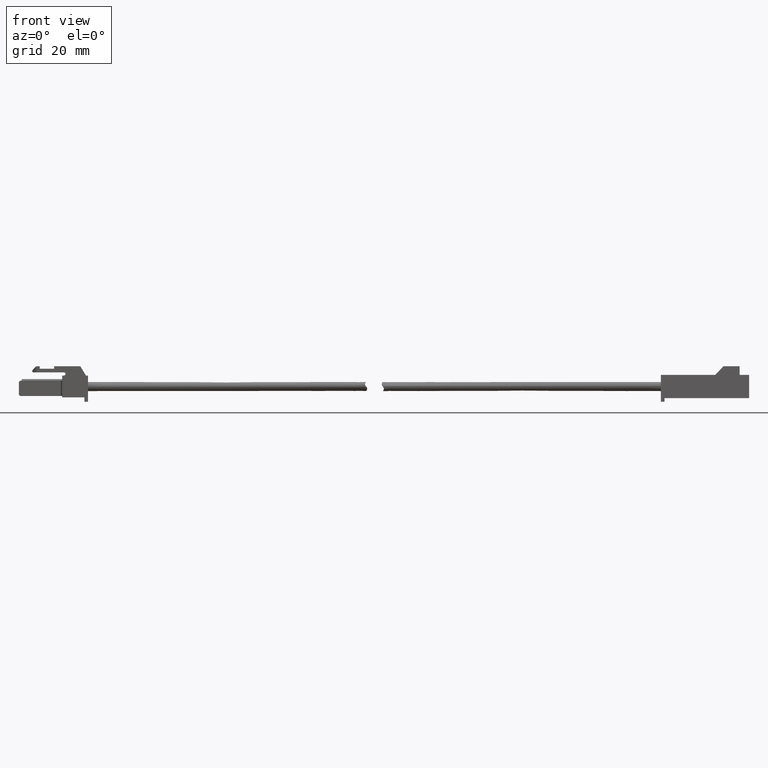
[diagram: clean part render]
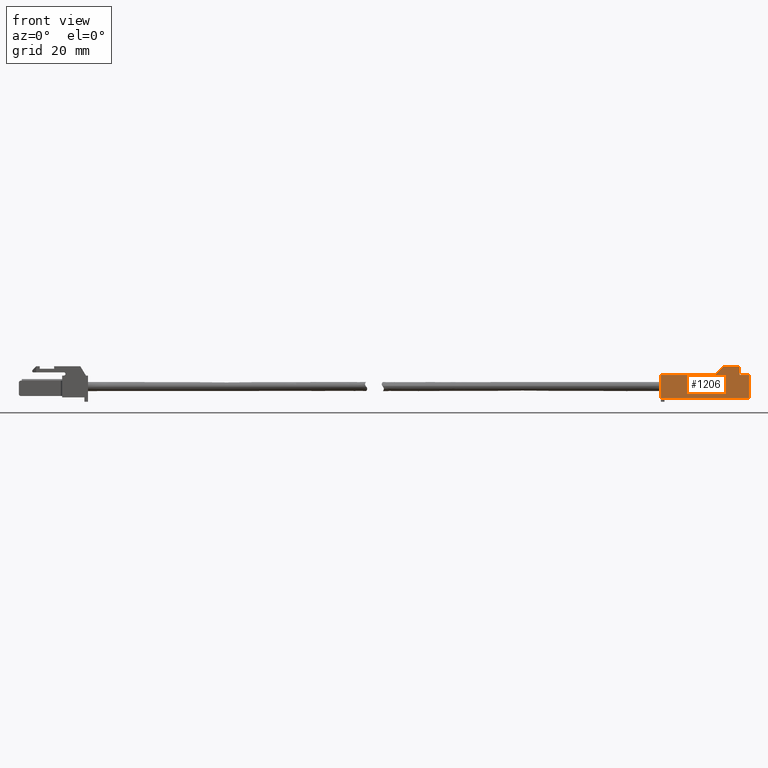
[diagram: same view with one face highlighted and labeled with its STEP entity id]
A machine part, front view. The second image highlights one B-rep face of the part: STEP entity #1206.
In plain terms, the highlighted face is a freeform B-spline surface patch.
Its self-contained STEP definition (entity closure, byte-faithful):
#876=CARTESIAN_POINT('',(102.616842711578000,-2.741321472613190,-3.177630938473330));
#877=VERTEX_POINT('',#876);
#878=CARTESIAN_POINT('',(102.616842711578000,-2.741321472613190,3.177630938473670));
#879=VERTEX_POINT('',#878);
#880=CARTESIAN_POINT('',(102.616842711578000,-2.741321472613190,-3.177630938473330));
#881=CARTESIAN_POINT('',(102.616842711578000,-2.741321472613190,3.177630938473670));
#882=QUASI_UNIFORM_CURVE('',1,(#880,#881),.UNSPECIFIED.,.F.,.U.);
#883=EDGE_CURVE('',#877,#879,#882,.T.);
#1151=CARTESIAN_POINT('',(77.234575784702315,-2.741321472613125,5.981237307048186));
#1152=CARTESIAN_POINT('',(103.824371514804400,-2.741321472613125,5.981237307048186));
#1153=CARTESIAN_POINT('',(77.234575784702315,-2.741321472613125,-3.613352351508846));
#1154=CARTESIAN_POINT('',(103.824371514804400,-2.741321472613125,-3.613352351508846));
#1155=B_SPLINE_SURFACE_WITH_KNOTS('',1,1,((#1151,#1153),(#1152,#1154)),.UNSPECIFIED.,.F.,.F.,.U.,(2,2),(2,2),(0.0,26.589795730102100),(0.0,9.594589658557032),.UNSPECIFIED.);
#1156=ORIENTED_EDGE('',*,*,#883,.T.);
#1157=CARTESIAN_POINT('',(100.000507041796200,-2.741321472613190,3.177630938473670));
#1158=VERTEX_POINT('',#1157);
#1159=CARTESIAN_POINT('',(102.616842711578000,-2.741321472613190,3.177630938473670));
#1160=CARTESIAN_POINT('',(100.000507041796200,-2.741321472613190,3.177630938473670));
#1161=QUASI_UNIFORM_CURVE('',1,(#1159,#1160),.UNSPECIFIED.,.F.,.U.);
#1162=EDGE_CURVE('',#879,#1158,#1161,.T.);
#1163=ORIENTED_EDGE('',*,*,#1162,.T.);
#1164=CARTESIAN_POINT('',(100.000507041796200,-2.741321472613190,5.545516127985710));
#1165=VERTEX_POINT('',#1164);
#1166=CARTESIAN_POINT('',(100.000507041796200,-2.741321472613190,3.177630938473670));
#1167=CARTESIAN_POINT('',(100.000507041796200,-2.741321472613190,5.545516127985710));
#1168=QUASI_UNIFORM_CURVE('',1,(#1166,#1167),.UNSPECIFIED.,.F.,.U.);
#1169=EDGE_CURVE('',#1158,#1165,#1168,.T.);
#1170=ORIENTED_EDGE('',*,*,#1169,.T.);
#1171=CARTESIAN_POINT('',(95.576060325804406,-2.741321472613190,5.545516127985710));
#1172=VERTEX_POINT('',#1171);
#1173=CARTESIAN_POINT('',(100.000507041796200,-2.741321472613190,5.545516127985710));
#1174=CARTESIAN_POINT('',(95.576060325804406,-2.741321472613190,5.545516127985710));
#1175=QUASI_UNIFORM_CURVE('',1,(#1173,#1174),.UNSPECIFIED.,.F.,.U.);
#1176=EDGE_CURVE('',#1165,#1172,#1175,.T.);
#1177=ORIENTED_EDGE('',*,*,#1176,.T.);
#1178=CARTESIAN_POINT('',(93.333921501817102,-2.741321472613190,3.177630938473670));
#1179=VERTEX_POINT('',#1178);
#1180=CARTESIAN_POINT('',(95.576060325804406,-2.741321472613190,5.545516127985710));
#1181=CARTESIAN_POINT('',(93.333921501817102,-2.741321472613190,3.177630938473670));
#1182=QUASI_UNIFORM_CURVE('',1,(#1180,#1181),.UNSPECIFIED.,.F.,.U.);
#1183=EDGE_CURVE('',#1172,#1179,#1182,.T.);
#1184=ORIENTED_EDGE('',*,*,#1183,.T.);
#1185=CARTESIAN_POINT('',(78.442103939511711,-2.741321472613190,3.177630938473670));
#1186=VERTEX_POINT('',#1185);
#1187=CARTESIAN_POINT('',(93.333921501817102,-2.741321472613190,3.177630938473670));
#1188=CARTESIAN_POINT('',(78.442103939511711,-2.741321472613190,3.177630938473670));
#1189=QUASI_UNIFORM_CURVE('',1,(#1187,#1188),.UNSPECIFIED.,.F.,.U.);
#1190=EDGE_CURVE('',#1179,#1186,#1189,.T.);
#1191=ORIENTED_EDGE('',*,*,#1190,.T.);
#1192=CARTESIAN_POINT('',(78.442103939511711,-2.741321472613190,-3.177630938473330));
#1193=VERTEX_POINT('',#1192);
#1194=CARTESIAN_POINT('',(78.442103939511711,-2.741321472613190,3.177630938473670));
#1195=CARTESIAN_POINT('',(78.442103939511711,-2.741321472613190,-3.177630938473330));
#1196=QUASI_UNIFORM_CURVE('',1,(#1194,#1195),.UNSPECIFIED.,.F.,.U.);
#1197=EDGE_CURVE('',#1186,#1193,#1196,.T.);
#1198=ORIENTED_EDGE('',*,*,#1197,.T.);
#1199=CARTESIAN_POINT('',(78.442103939511711,-2.741321472613190,-3.177630938473330));
#1200=CARTESIAN_POINT('',(102.616842711578000,-2.741321472613190,-3.177630938473330));
#1201=QUASI_UNIFORM_CURVE('',1,(#1199,#1200),.UNSPECIFIED.,.F.,.U.);
#1202=EDGE_CURVE('',#1193,#877,#1201,.T.);
#1203=ORIENTED_EDGE('',*,*,#1202,.T.);
#1204=EDGE_LOOP('',(#1156,#1163,#1170,#1177,#1184,#1191,#1198,#1203));
#1205=FACE_OUTER_BOUND('',#1204,.T.);
#1206=ADVANCED_FACE('',(#1205),#1155,.F.);